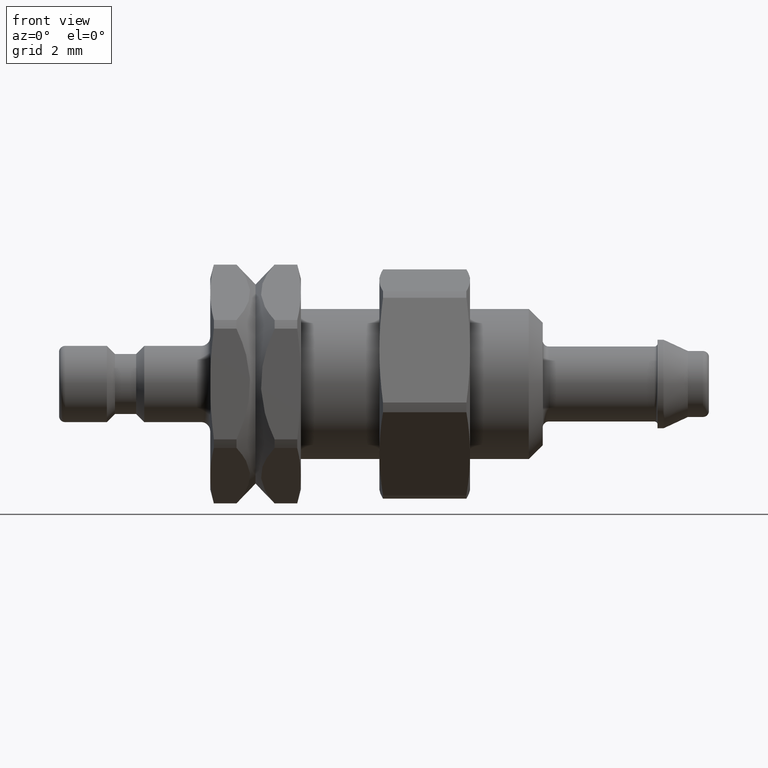
[diagram: clean part render]
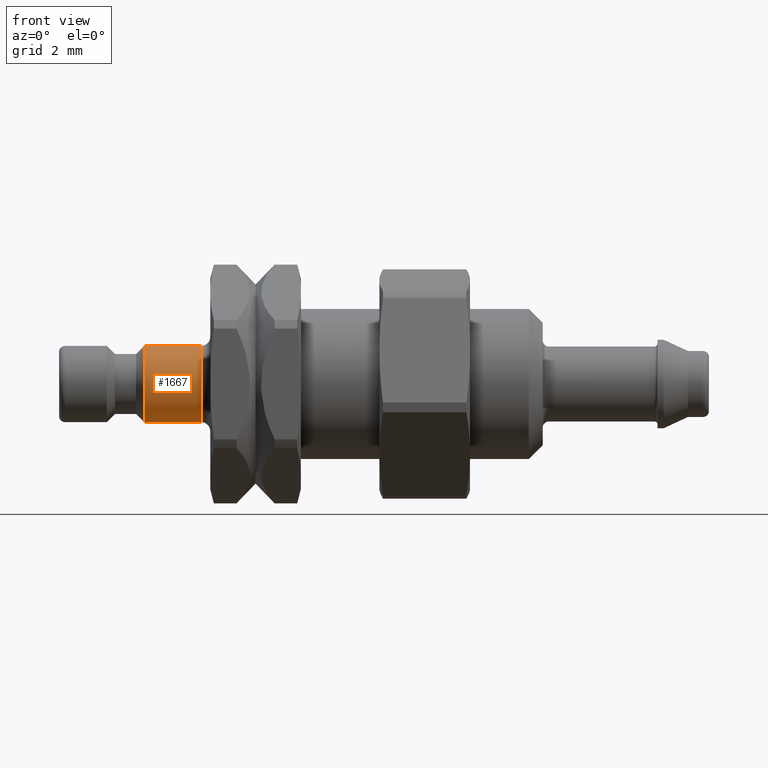
[diagram: same view with one face highlighted and labeled with its STEP entity id]
A machine part, front view. The second image highlights one B-rep face of the part: STEP entity #1667.
In plain terms, the highlighted cylindrical surface (bore or boss wall) has radius 1.27 mm, axis along (1, 0, 0).
Its self-contained STEP definition (entity closure, byte-faithful):
#1633=CARTESIAN_POINT('',(2.820000000000000,1.270000000000000,0.0));
#1634=VERTEX_POINT('',#1633);
#1635=CARTESIAN_POINT('',(2.820000000000000,0.0,0.0));
#1636=DIRECTION('',(1.0,0.0,0.0));
#1637=DIRECTION('',(0.0,1.0,0.0));
#1638=AXIS2_PLACEMENT_3D('',#1635,#1636,#1637);
#1639=CIRCLE('',#1638,1.270000000000000);
#1640=EDGE_CURVE('',#1634,#1634,#1639,.T.);
#1648=CARTESIAN_POINT('',(3.759999999999999,0.0,0.0));
#1649=DIRECTION('',(1.0,0.0,0.0));
#1650=DIRECTION('',(0.0,1.0,0.0));
#1651=AXIS2_PLACEMENT_3D('',#1648,#1649,#1650);
#1652=CYLINDRICAL_SURFACE('',#1651,1.270000000000000);
#1653=CARTESIAN_POINT('',(4.699999999999999,1.270000000000000,0.0));
#1654=VERTEX_POINT('',#1653);
#1655=CARTESIAN_POINT('',(4.699999999999999,0.0,0.0));
#1656=DIRECTION('',(1.0,0.0,0.0));
#1657=DIRECTION('',(0.0,1.0,0.0));
#1658=AXIS2_PLACEMENT_3D('',#1655,#1656,#1657);
#1659=CIRCLE('',#1658,1.270000000000000);
#1660=EDGE_CURVE('',#1654,#1654,#1659,.T.);
#1661=ORIENTED_EDGE('',*,*,#1660,.F.);
#1662=EDGE_LOOP('',(#1661));
#1663=FACE_OUTER_BOUND('',#1662,.T.);
#1664=ORIENTED_EDGE('',*,*,#1640,.T.);
#1665=EDGE_LOOP('',(#1664));
#1666=FACE_BOUND('',#1665,.T.);
#1667=ADVANCED_FACE('',(#1663,#1666),#1652,.T.);